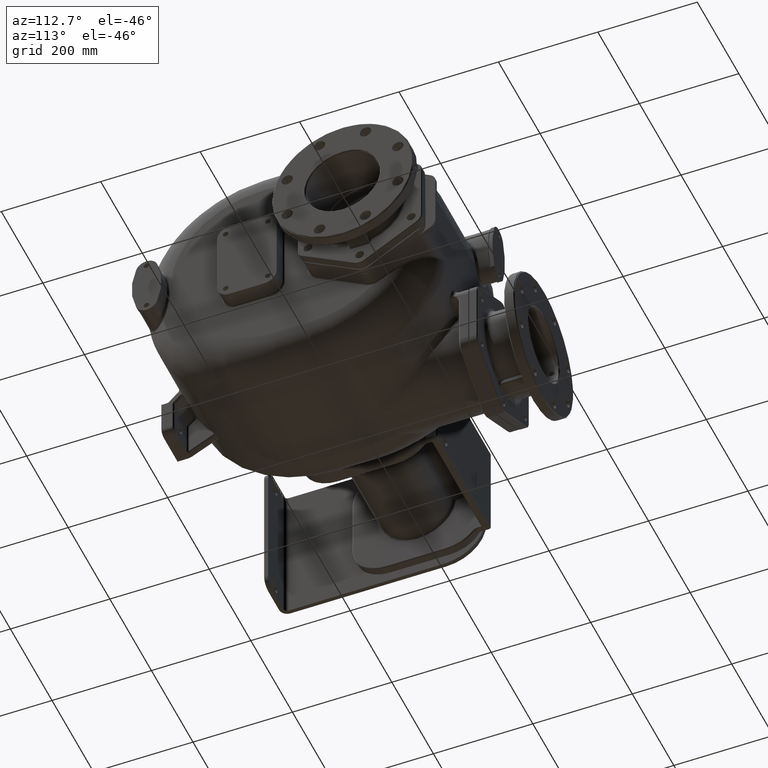
[diagram: clean part render]
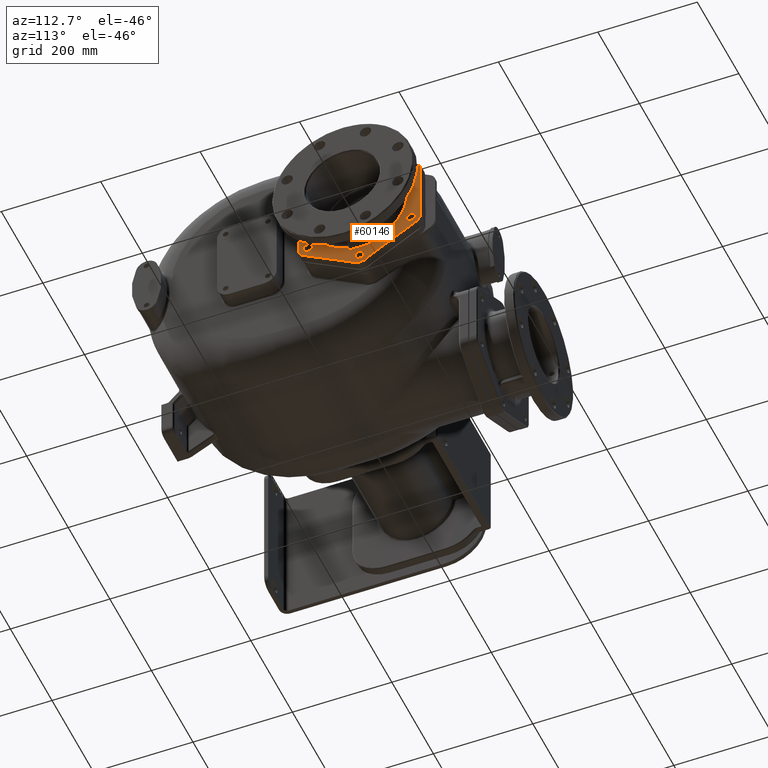
[diagram: same view with one face highlighted and labeled with its STEP entity id]
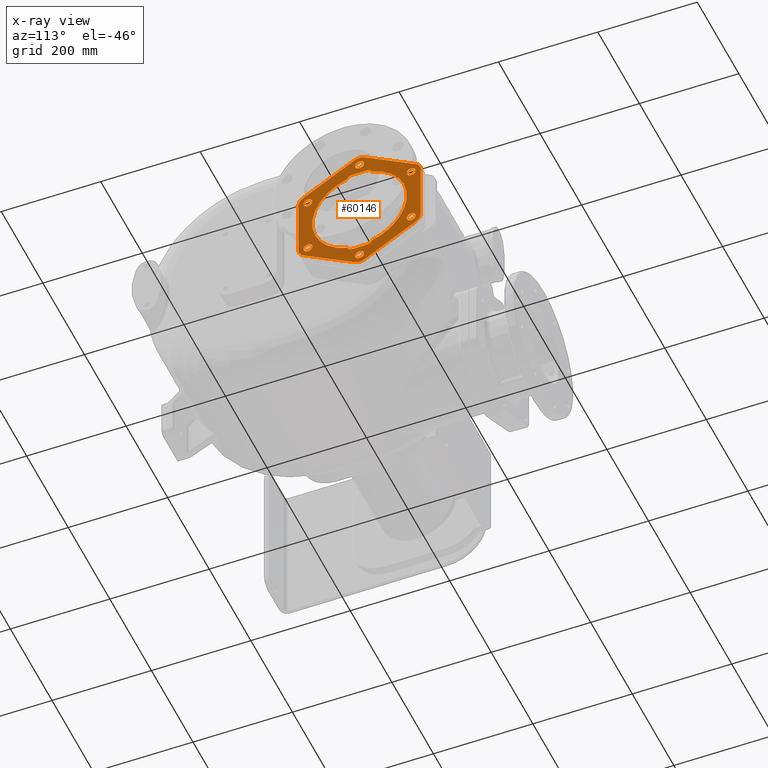
[diagram: x-ray of the same camera — body ghosted, the highlighted face saturated]
A machine part, auxiliary view. The second image highlights one B-rep face of the part: STEP entity #60146.
The next image is the same camera in x-ray: the body ghosted, the highlighted face saturated — about 0% of this face is hidden behind the body in this view.
In plain terms, the highlighted planar face has unit normal (1, 0, 0).
Its self-contained STEP definition (entity closure, byte-faithful):
#56793=CARTESIAN_POINT('',(2.485E2,4.9E2,-1.460888559914E2));
#56794=DIRECTION('',(1.E0,0.E0,0.E0));
#56795=DIRECTION('',(0.E0,-4.999999999999E-1,-8.660254037845E-1));
#56796=AXIS2_PLACEMENT_3D('',#56793,#56794,#56795);
#56798=DIRECTION('',(0.E0,8.660254037844E-1,-5.E-1));
#56799=VECTOR('',#56798,1.200888559914E2);
#56800=CARTESIAN_POINT('',(2.485E2,3.765E2,-1.024989106676E2));
#56801=LINE('',#56800,#56799);
#56802=CARTESIAN_POINT('',(2.485E2,3.86E2,-8.604442799572E1));
#56803=DIRECTION('',(1.E0,0.E0,0.E0));
#56804=DIRECTION('',(0.E0,-1.E0,0.E0));
#56805=AXIS2_PLACEMENT_3D('',#56802,#56803,#56804);
#56807=DIRECTION('',(0.E0,0.E0,-1.E0));
#56808=VECTOR('',#56807,1.200888559914E2);
#56809=CARTESIAN_POINT('',(2.485E2,3.67E2,3.404442799572E1));
#56810=LINE('',#56809,#56808);
#56811=CARTESIAN_POINT('',(2.485E2,3.86E2,3.404442799572E1));
#56812=DIRECTION('',(1.E0,0.E0,0.E0));
#56813=DIRECTION('',(0.E0,-5.E-1,8.660254037844E-1));
#56814=AXIS2_PLACEMENT_3D('',#56811,#56812,#56813);
#56816=DIRECTION('',(0.E0,-8.660254037844E-1,-5.E-1));
#56817=VECTOR('',#56816,1.200888559914E2);
#56818=CARTESIAN_POINT('',(2.485E2,4.805E2,1.105433386633E2));
#56819=LINE('',#56818,#56817);
#56820=CARTESIAN_POINT('',(2.485E2,4.9E2,9.408885599144E1));
#56821=DIRECTION('',(1.E0,0.E0,0.E0));
#56822=DIRECTION('',(0.E0,4.999999999999E-1,8.660254037845E-1));
#56823=AXIS2_PLACEMENT_3D('',#56820,#56821,#56822);
#56825=DIRECTION('',(0.E0,-8.660254037844E-1,5.E-1));
#56826=VECTOR('',#56825,1.200888559914E2);
#56827=CARTESIAN_POINT('',(2.485E2,6.035E2,5.049891066763E1));
#56828=LINE('',#56827,#56826);
#56829=CARTESIAN_POINT('',(2.485E2,5.94E2,3.404442799572E1));
#56830=DIRECTION('',(1.E0,0.E0,0.E0));
#56831=DIRECTION('',(0.E0,1.E0,0.E0));
#56832=AXIS2_PLACEMENT_3D('',#56829,#56830,#56831);
#56834=DIRECTION('',(0.E0,0.E0,1.E0));
#56835=VECTOR('',#56834,1.200888559914E2);
#56836=CARTESIAN_POINT('',(2.485E2,6.13E2,-8.604442799572E1));
#56837=LINE('',#56836,#56835);
#56838=CARTESIAN_POINT('',(2.485E2,5.94E2,-8.604442799572E1));
#56839=DIRECTION('',(1.E0,0.E0,0.E0));
#56840=DIRECTION('',(0.E0,5.E-1,-8.660254037844E-1));
#56841=AXIS2_PLACEMENT_3D('',#56838,#56839,#56840);
#56843=DIRECTION('',(0.E0,8.660254037844E-1,5.E-1));
#56844=VECTOR('',#56843,1.200888559914E2);
#56845=CARTESIAN_POINT('',(2.485E2,4.995E2,-1.625433386633E2));
#56846=LINE('',#56845,#56844);
#56847=CARTESIAN_POINT('',(2.485E2,5.06E2,-1.17E2));
#56848=DIRECTION('',(-1.E0,0.E0,0.E0));
#56849=DIRECTION('',(0.E0,9.931808841818E-1,-1.165835807305E-1));
#56850=AXIS2_PLACEMENT_3D('',#56847,#56848,#56849);
#56852=CARTESIAN_POINT('',(2.485E2,4.9E2,-2.6E1));
#56853=DIRECTION('',(1.E0,0.E0,0.E0));
#56854=DIRECTION('',(0.E0,2.520573376169E-1,-9.677123015408E-1));
#56855=AXIS2_PLACEMENT_3D('',#56852,#56853,#56854);
#56857=CARTESIAN_POINT('',(2.485E2,5.06E2,6.5E1));
#56858=DIRECTION('',(1.E0,0.E0,0.E0));
#56859=DIRECTION('',(0.E0,9.931808841817E-1,1.165835807308E-1));
#56860=AXIS2_PLACEMENT_3D('',#56857,#56858,#56859);
#56862=DIRECTION('',(0.E0,-1.E0,0.E0));
#56863=VECTOR('',#56862,3.2E1);
#56864=CARTESIAN_POINT('',(2.485E2,5.06E2,7.3E1));
#56865=LINE('',#56864,#56863);
#56866=CARTESIAN_POINT('',(2.485E2,4.74E2,6.5E1));
#56867=DIRECTION('',(1.E0,0.E0,0.E0));
#56868=DIRECTION('',(0.E0,0.E0,1.E0));
#56869=AXIS2_PLACEMENT_3D('',#56866,#56867,#56868);
#56871=CARTESIAN_POINT('',(2.485E2,4.74E2,-1.17E2));
#56872=DIRECTION('',(-1.E0,0.E0,0.E0));
#56873=DIRECTION('',(0.E0,0.E0,-1.E0));
#56874=AXIS2_PLACEMENT_3D('',#56871,#56872,#56873);
#56876=DIRECTION('',(0.E0,-1.E0,0.E0));
#56877=VECTOR('',#56876,3.2E1);
#56878=CARTESIAN_POINT('',(2.485E2,5.06E2,-1.25E2));
#56879=LINE('',#56878,#56877);
#56880=CARTESIAN_POINT('',(2.485E2,3.860769515459E2,-8.6E1));
#56881=DIRECTION('',(1.E0,0.E0,0.E0));
#56882=DIRECTION('',(0.E0,0.E0,1.E0));
#56883=AXIS2_PLACEMENT_3D('',#56880,#56881,#56882);
#56885=CARTESIAN_POINT('',(2.485E2,3.860769515459E2,-8.6E1));
#56886=DIRECTION('',(1.E0,0.E0,0.E0));
#56887=DIRECTION('',(0.E0,0.E0,-1.E0));
#56888=AXIS2_PLACEMENT_3D('',#56885,#56886,#56887);
#56890=CARTESIAN_POINT('',(2.485E2,4.9E2,-1.46E2));
#56891=DIRECTION('',(1.E0,0.E0,0.E0));
#56892=DIRECTION('',(0.E0,-8.660254037844E-1,5.E-1));
#56893=AXIS2_PLACEMENT_3D('',#56890,#56891,#56892);
#56895=CARTESIAN_POINT('',(2.485E2,4.9E2,-1.46E2));
#56896=DIRECTION('',(1.E0,0.E0,0.E0));
#56897=DIRECTION('',(0.E0,8.660254037844E-1,-5.E-1));
#56898=AXIS2_PLACEMENT_3D('',#56895,#56896,#56897);
#56900=CARTESIAN_POINT('',(2.485E2,5.939230484541E2,-8.6E1));
#56901=DIRECTION('',(1.E0,0.E0,0.E0));
#56902=DIRECTION('',(0.E0,-8.660254037844E-1,-5.E-1));
#56903=AXIS2_PLACEMENT_3D('',#56900,#56901,#56902);
#56905=CARTESIAN_POINT('',(2.485E2,5.939230484541E2,-8.6E1));
#56906=DIRECTION('',(1.E0,0.E0,0.E0));
#56907=DIRECTION('',(0.E0,8.660254037844E-1,5.E-1));
#56908=AXIS2_PLACEMENT_3D('',#56905,#56906,#56907);
#56910=CARTESIAN_POINT('',(2.485E2,5.939230484541E2,3.4E1));
#56911=DIRECTION('',(1.E0,0.E0,0.E0));
#56912=DIRECTION('',(0.E0,0.E0,-1.E0));
#56913=AXIS2_PLACEMENT_3D('',#56910,#56911,#56912);
#56915=CARTESIAN_POINT('',(2.485E2,5.939230484541E2,3.4E1));
#56916=DIRECTION('',(1.E0,0.E0,0.E0));
#56917=DIRECTION('',(0.E0,0.E0,1.E0));
#56918=AXIS2_PLACEMENT_3D('',#56915,#56916,#56917);
#56920=CARTESIAN_POINT('',(2.485E2,4.9E2,9.4E1));
#56921=DIRECTION('',(1.E0,0.E0,0.E0));
#56922=DIRECTION('',(0.E0,8.660254037844E-1,-5.E-1));
#56923=AXIS2_PLACEMENT_3D('',#56920,#56921,#56922);
#56925=CARTESIAN_POINT('',(2.485E2,4.9E2,9.4E1));
#56926=DIRECTION('',(1.E0,0.E0,0.E0));
#56927=DIRECTION('',(0.E0,-8.660254037844E-1,5.E-1));
#56928=AXIS2_PLACEMENT_3D('',#56925,#56926,#56927);
#56930=CARTESIAN_POINT('',(2.485E2,3.860769515459E2,3.4E1));
#56931=DIRECTION('',(1.E0,0.E0,0.E0));
#56932=DIRECTION('',(0.E0,8.660254037844E-1,5.E-1));
#56933=AXIS2_PLACEMENT_3D('',#56930,#56931,#56932);
#56935=CARTESIAN_POINT('',(2.485E2,3.860769515459E2,3.4E1));
#56936=DIRECTION('',(1.E0,0.E0,0.E0));
#56937=DIRECTION('',(0.E0,-8.660254037844E-1,-5.E-1));
#56938=AXIS2_PLACEMENT_3D('',#56935,#56936,#56937);
#59079=CARTESIAN_POINT('',(2.485E2,5.139454470734E2,6.593266864629E1));
#59088=CARTESIAN_POINT('',(2.485E2,5.139454470734E2,-1.179326686463E2));
#59431=CARTESIAN_POINT('',(2.485E2,4.9E2,-2.6E1));
#59432=DIRECTION('',(-1.E0,0.E0,0.E0));
#59433=DIRECTION('',(0.E0,-2.520573376160E-1,-9.677123015411E-1));
#59434=AXIS2_PLACEMENT_3D('',#59431,#59432,#59433);
#59747=VERTEX_POINT('',#59088);
#59750=CARTESIAN_POINT('',(2.485E2,5.06E2,-1.25E2));
#59751=VERTEX_POINT('',#59750);
#59754=CARTESIAN_POINT('',(2.485E2,4.74E2,-1.25E2));
#59755=VERTEX_POINT('',#59754);
#59758=CARTESIAN_POINT('',(2.485E2,4.660545529266E2,-1.179326686461E2));
#59759=VERTEX_POINT('',#59758);
#59792=VERTEX_POINT('',#59079);
#59794=CARTESIAN_POINT('',(2.485E2,5.06E2,7.3E1));
#59795=VERTEX_POINT('',#59794);
#59798=CARTESIAN_POINT('',(2.485E2,4.74E2,7.3E1));
#59799=VERTEX_POINT('',#59798);
#59802=CARTESIAN_POINT('',(2.485E2,4.660545529266E2,6.593266864609E1));
#59803=VERTEX_POINT('',#59802);
#59821=CARTESIAN_POINT('',(2.485E2,4.805E2,-1.625433386633E2));
#59822=CARTESIAN_POINT('',(2.485E2,4.995E2,-1.625433386633E2));
#59823=VERTEX_POINT('',#59821);
#59824=VERTEX_POINT('',#59822);
#59829=CARTESIAN_POINT('',(2.485E2,6.035E2,-1.024989106676E2));
#59830=VERTEX_POINT('',#59829);
#59833=CARTESIAN_POINT('',(2.485E2,6.13E2,-8.604442799572E1));
#59834=VERTEX_POINT('',#59833);
#59837=CARTESIAN_POINT('',(2.485E2,6.13E2,3.404442799572E1));
#59838=VERTEX_POINT('',#59837);
#59841=CARTESIAN_POINT('',(2.485E2,6.035E2,5.049891066763E1));
#59842=VERTEX_POINT('',#59841);
#59845=CARTESIAN_POINT('',(2.485E2,4.995E2,1.105433386633E2));
#59846=VERTEX_POINT('',#59845);
#59849=CARTESIAN_POINT('',(2.485E2,4.805E2,1.105433386633E2));
#59850=VERTEX_POINT('',#59849);
#59853=CARTESIAN_POINT('',(2.485E2,3.765E2,5.049891066763E1));
#59854=VERTEX_POINT('',#59853);
#59857=CARTESIAN_POINT('',(2.485E2,3.67E2,3.404442799572E1));
#59858=VERTEX_POINT('',#59857);
#59861=CARTESIAN_POINT('',(2.485E2,3.67E2,-8.604442799572E1));
#59862=VERTEX_POINT('',#59861);
#59865=CARTESIAN_POINT('',(2.485E2,3.765E2,-1.024989106676E2));
#59866=VERTEX_POINT('',#59865);
#59911=CARTESIAN_POINT('',(2.485E2,3.860769515459E2,-7.7E1));
#59912=CARTESIAN_POINT('',(2.485E2,3.860769515459E2,-9.5E1));
#59913=VERTEX_POINT('',#59911);
#59914=VERTEX_POINT('',#59912);
#59919=CARTESIAN_POINT('',(2.485E2,4.822057713659E2,-1.415E2));
#59920=CARTESIAN_POINT('',(2.485E2,4.977942286341E2,-1.505E2));
#59921=VERTEX_POINT('',#59919);
#59922=VERTEX_POINT('',#59920);
#59927=CARTESIAN_POINT('',(2.485E2,5.861288198201E2,-9.05E1));
#59928=CARTESIAN_POINT('',(2.485E2,6.017172770882E2,-8.15E1));
#59929=VERTEX_POINT('',#59927);
#59930=VERTEX_POINT('',#59928);
#59935=CARTESIAN_POINT('',(2.485E2,5.939230484541E2,2.5E1));
#59936=CARTESIAN_POINT('',(2.485E2,5.939230484541E2,4.3E1));
#59937=VERTEX_POINT('',#59935);
#59938=VERTEX_POINT('',#59936);
#59943=CARTESIAN_POINT('',(2.485E2,4.977942286341E2,8.95E1));
#59944=CARTESIAN_POINT('',(2.485E2,4.822057713659E2,9.85E1));
#59945=VERTEX_POINT('',#59943);
#59946=VERTEX_POINT('',#59944);
#59951=CARTESIAN_POINT('',(2.485E2,3.938711801799E2,3.85E1));
#59952=CARTESIAN_POINT('',(2.485E2,3.782827229118E2,2.95E1));
#59953=VERTEX_POINT('',#59951);
#59954=VERTEX_POINT('',#59952);
#60062=CARTESIAN_POINT('',(2.485E2,4.9E2,-2.6E1));
#60063=DIRECTION('',(1.E0,0.E0,0.E0));
#60064=DIRECTION('',(0.E0,0.E0,-1.E0));
#60065=AXIS2_PLACEMENT_3D('',#60062,#60063,#60064);
#60066=PLANE('',#60065);
#60068=ORIENTED_EDGE('',*,*,#60067,.F.);
#60070=ORIENTED_EDGE('',*,*,#60069,.F.);
#60072=ORIENTED_EDGE('',*,*,#60071,.F.);
#60074=ORIENTED_EDGE('',*,*,#60073,.F.);
#60076=ORIENTED_EDGE('',*,*,#60075,.F.);
#60078=ORIENTED_EDGE('',*,*,#60077,.F.);
#60080=ORIENTED_EDGE('',*,*,#60079,.F.);
#60082=ORIENTED_EDGE('',*,*,#60081,.F.);
#60084=ORIENTED_EDGE('',*,*,#60083,.F.);
#60086=ORIENTED_EDGE('',*,*,#60085,.F.);
#60088=ORIENTED_EDGE('',*,*,#60087,.F.);
#60089=ORIENTED_EDGE('',*,*,#60051,.F.);
#60090=EDGE_LOOP('',(#60068,#60070,#60072,#60074,#60076,#60078,#60080,#60082,
#60084,#60086,#60088,#60089));
#60091=FACE_OUTER_BOUND('',#60090,.F.);
#60093=ORIENTED_EDGE('',*,*,#60092,.F.);
#60095=ORIENTED_EDGE('',*,*,#60094,.T.);
#60097=ORIENTED_EDGE('',*,*,#60096,.T.);
#60099=ORIENTED_EDGE('',*,*,#60098,.T.);
#60101=ORIENTED_EDGE('',*,*,#60100,.T.);
#60103=ORIENTED_EDGE('',*,*,#60102,.F.);
#60105=ORIENTED_EDGE('',*,*,#60104,.F.);
#60107=ORIENTED_EDGE('',*,*,#60106,.F.);
#60108=EDGE_LOOP('',(#60093,#60095,#60097,#60099,#60101,#60103,#60105,#60107));
#60109=FACE_BOUND('',#60108,.F.);
#60111=ORIENTED_EDGE('',*,*,#60110,.T.);
#60113=ORIENTED_EDGE('',*,*,#60112,.T.);
#60114=EDGE_LOOP('',(#60111,#60113));
#60115=FACE_BOUND('',#60114,.F.);
#60117=ORIENTED_EDGE('',*,*,#60116,.T.);
#60119=ORIENTED_EDGE('',*,*,#60118,.T.);
#60120=EDGE_LOOP('',(#60117,#60119));
#60121=FACE_BOUND('',#60120,.F.);
#60123=ORIENTED_EDGE('',*,*,#60122,.T.);
#60125=ORIENTED_EDGE('',*,*,#60124,.T.);
#60126=EDGE_LOOP('',(#60123,#60125));
#60127=FACE_BOUND('',#60126,.F.);
#60129=ORIENTED_EDGE('',*,*,#60128,.T.);
#60131=ORIENTED_EDGE('',*,*,#60130,.T.);
#60132=EDGE_LOOP('',(#60129,#60131));
#60133=FACE_BOUND('',#60132,.F.);
#60135=ORIENTED_EDGE('',*,*,#60134,.T.);
#60137=ORIENTED_EDGE('',*,*,#60136,.T.);
#60138=EDGE_LOOP('',(#60135,#60137));
#60139=FACE_BOUND('',#60138,.F.);
#60141=ORIENTED_EDGE('',*,*,#60140,.T.);
#60143=ORIENTED_EDGE('',*,*,#60142,.T.);
#60144=EDGE_LOOP('',(#60141,#60143));
#60145=FACE_BOUND('',#60144,.F.);
#60146=ADVANCED_FACE('',(#60091,#60109,#60115,#60121,#60127,#60133,#60139,
#60145),#60066,.T.);
#56797=CIRCLE('',#56796,1.9E1);
#56806=CIRCLE('',#56805,1.9E1);
#56815=CIRCLE('',#56814,1.9E1);
#56824=CIRCLE('',#56823,1.9E1);
#56833=CIRCLE('',#56832,1.9E1);
#56842=CIRCLE('',#56841,1.9E1);
#56851=CIRCLE('',#56850,8.E0);
#56856=CIRCLE('',#56855,9.5E1);
#56861=CIRCLE('',#56860,8.E0);
#56870=CIRCLE('',#56869,8.E0);
#56875=CIRCLE('',#56874,8.E0);
#56884=CIRCLE('',#56883,9.E0);
#56889=CIRCLE('',#56888,9.E0);
#56894=CIRCLE('',#56893,9.E0);
#56899=CIRCLE('',#56898,9.E0);
#56904=CIRCLE('',#56903,9.E0);
#56909=CIRCLE('',#56908,9.E0);
#56914=CIRCLE('',#56913,9.E0);
#56919=CIRCLE('',#56918,9.E0);
#56924=CIRCLE('',#56923,9.E0);
#56929=CIRCLE('',#56928,9.E0);
#56934=CIRCLE('',#56933,9.E0);
#56939=CIRCLE('',#56938,9.E0);
#59435=CIRCLE('',#59434,9.5E1);
#60051=EDGE_CURVE('',#59824,#59830,#56846,.T.);
#60067=EDGE_CURVE('',#59823,#59824,#56797,.T.);
#60069=EDGE_CURVE('',#59866,#59823,#56801,.T.);
#60071=EDGE_CURVE('',#59862,#59866,#56806,.T.);
#60073=EDGE_CURVE('',#59858,#59862,#56810,.T.);
#60075=EDGE_CURVE('',#59854,#59858,#56815,.T.);
#60077=EDGE_CURVE('',#59850,#59854,#56819,.T.);
#60079=EDGE_CURVE('',#59846,#59850,#56824,.T.);
#60081=EDGE_CURVE('',#59842,#59846,#56828,.T.);
#60083=EDGE_CURVE('',#59838,#59842,#56833,.T.);
#60085=EDGE_CURVE('',#59834,#59838,#56837,.T.);
#60087=EDGE_CURVE('',#59830,#59834,#56842,.T.);
#60092=EDGE_CURVE('',#59747,#59751,#56851,.T.);
#60094=EDGE_CURVE('',#59747,#59792,#56856,.T.);
#60096=EDGE_CURVE('',#59792,#59795,#56861,.T.);
#60098=EDGE_CURVE('',#59795,#59799,#56865,.T.);
#60100=EDGE_CURVE('',#59799,#59803,#56870,.T.);
#60102=EDGE_CURVE('',#59759,#59803,#59435,.T.);
#60104=EDGE_CURVE('',#59755,#59759,#56875,.T.);
#60106=EDGE_CURVE('',#59751,#59755,#56879,.T.);
#60110=EDGE_CURVE('',#59913,#59914,#56884,.T.);
#60112=EDGE_CURVE('',#59914,#59913,#56889,.T.);
#60116=EDGE_CURVE('',#59921,#59922,#56894,.T.);
#60118=EDGE_CURVE('',#59922,#59921,#56899,.T.);
#60122=EDGE_CURVE('',#59929,#59930,#56904,.T.);
#60124=EDGE_CURVE('',#59930,#59929,#56909,.T.);
#60128=EDGE_CURVE('',#59937,#59938,#56914,.T.);
#60130=EDGE_CURVE('',#59938,#59937,#56919,.T.);
#60134=EDGE_CURVE('',#59945,#59946,#56924,.T.);
#60136=EDGE_CURVE('',#59946,#59945,#56929,.T.);
#60140=EDGE_CURVE('',#59953,#59954,#56934,.T.);
#60142=EDGE_CURVE('',#59954,#59953,#56939,.T.);